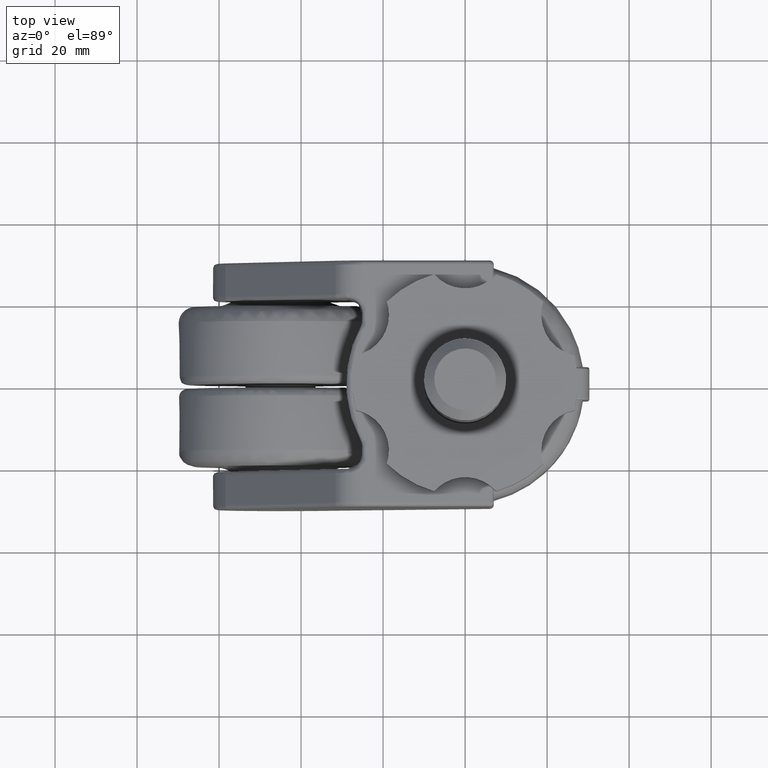
[diagram: clean part render]
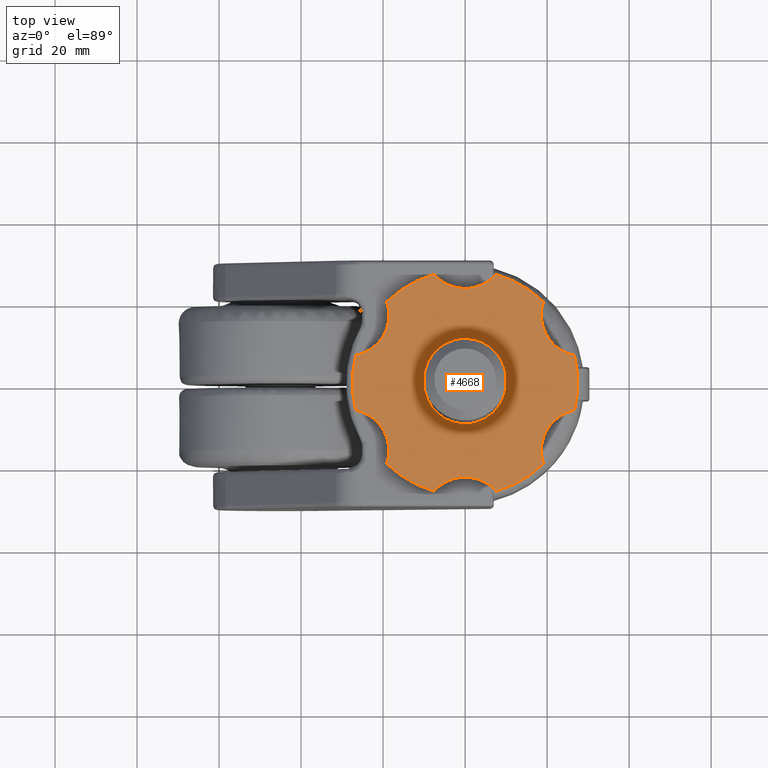
[diagram: same view with one face highlighted and labeled with its STEP entity id]
A machine part, top view. The second image highlights one B-rep face of the part: STEP entity #4668.
In plain terms, the highlighted face is a freeform B-spline surface patch.
Its self-contained STEP definition (entity closure, byte-faithful):
#2966=CARTESIAN_POINT('',(0.784583558921376,-9.969173919589082,3.000000000000001));
#2967=VERTEX_POINT('',#2966);
#2973=CARTESIAN_POINT('',(10.0,0.0,3.0));
#2974=VERTEX_POINT('',#2973);
#2975=CARTESIAN_POINT('',(10.0,0.0,3.0));
#2976=CARTESIAN_POINT('',(10.0,-9.243911797915263,3.000000000000000));
#2977=CARTESIAN_POINT('',(0.784583558921376,-9.969173919589082,3.000000000000000));
#2985=(BOUNDED_CURVE()B_SPLINE_CURVE(2,(#2975,#2976,#2977),.UNSPECIFIED.,.F.,.U.)B_SPLINE_CURVE_WITH_KNOTS((3,3),(0.0,0.236331427850907),.UNSPECIFIED.)CURVE()GEOMETRIC_REPRESENTATION_ITEM()RATIONAL_B_SPLINE_CURVE((1.0,0.723120509559875,0.969723621666520))REPRESENTATION_ITEM(''));
#2986=EDGE_CURVE('',#2974,#2967,#2985,.T.);
#2988=CARTESIAN_POINT('',(-0.784583558921376,9.969173919589082,3.000000000000001));
#2989=VERTEX_POINT('',#2988);
#2990=CARTESIAN_POINT('',(-0.784583558921376,9.969173919589082,3.000000000000000));
#2991=CARTESIAN_POINT('',(-0.392897353731712,10.000000000000002,3.000000000000000));
#2992=CARTESIAN_POINT('',(0.0,10.0,3.0));
#2993=CARTESIAN_POINT('',(10.000000000000002,10.000000000000002,3.0));
#2994=CARTESIAN_POINT('',(10.0,0.0,3.0));
#3002=(BOUNDED_CURVE()B_SPLINE_CURVE(2,(#2990,#2991,#2992,#2993,#2994),.UNSPECIFIED.,.F.,.U.)B_SPLINE_CURVE_WITH_KNOTS((3,2,3),(0.736331427850907,0.750000000000000,1.0),.UNSPECIFIED.)CURVE()GEOMETRIC_REPRESENTATION_ITEM()RATIONAL_B_SPLINE_CURVE((0.969723621666520,0.983986271626673,1.0,0.707106781186548,1.0))REPRESENTATION_ITEM(''));
#3003=EDGE_CURVE('',#2989,#2974,#3002,.T.);
#3109=CARTESIAN_POINT('',(-10.0,0.0,3.0));
#3110=VERTEX_POINT('',#3109);
#3111=CARTESIAN_POINT('',(-10.0,0.0,3.0));
#3112=CARTESIAN_POINT('',(-10.0,9.243911797915262,3.000000000000000));
#3113=CARTESIAN_POINT('',(-0.784583558921376,9.969173919589082,3.000000000000000));
#3121=(BOUNDED_CURVE()B_SPLINE_CURVE(2,(#3111,#3112,#3113),.UNSPECIFIED.,.F.,.U.)B_SPLINE_CURVE_WITH_KNOTS((3,3),(0.500000000000000,0.736331427850907),.UNSPECIFIED.)CURVE()GEOMETRIC_REPRESENTATION_ITEM()RATIONAL_B_SPLINE_CURVE((1.0,0.723120509559875,0.969723621666520))REPRESENTATION_ITEM(''));
#3122=EDGE_CURVE('',#3110,#2989,#3121,.T.);
#3124=CARTESIAN_POINT('',(0.784583558921376,-9.969173919589082,3.000000000000000));
#3125=CARTESIAN_POINT('',(0.392897353731711,-10.0,3.000000000000000));
#3126=CARTESIAN_POINT('',(0.0,-10.0,3.0));
#3127=CARTESIAN_POINT('',(-10.000000000000002,-10.000000000000002,3.0));
#3128=CARTESIAN_POINT('',(-10.0,0.0,3.0));
#3136=(BOUNDED_CURVE()B_SPLINE_CURVE(2,(#3124,#3125,#3126,#3127,#3128),.UNSPECIFIED.,.F.,.U.)B_SPLINE_CURVE_WITH_KNOTS((3,2,3),(0.236331427850907,0.250000000000000,0.500000000000000),.UNSPECIFIED.)CURVE()GEOMETRIC_REPRESENTATION_ITEM()RATIONAL_B_SPLINE_CURVE((0.969723621666520,0.983986271626673,1.0,0.707106781186548,1.0))REPRESENTATION_ITEM(''));
#3137=EDGE_CURVE('',#2967,#3110,#3136,.T.);
#3997=CARTESIAN_POINT('',(-7.550373221018530,26.443181852199501,3.0));
#3998=VERTEX_POINT('',#3997);
#3999=CARTESIAN_POINT('',(7.550373342866660,26.443181774955299,3.0));
#4000=VERTEX_POINT('',#3999);
#4001=CARTESIAN_POINT('',(-7.550373221018546,26.443181852199491,3.0));
#4002=CARTESIAN_POINT('',(-4.560280330764888,22.999999995081428,3.000000000000000));
#4003=CARTESIAN_POINT('',(0.000000010785669,23.0,3.0));
#4004=CARTESIAN_POINT('',(4.560280352336225,23.000000004918569,3.000000000000000));
#4005=CARTESIAN_POINT('',(7.550373342866660,26.443181774955299,3.0));
#4013=(BOUNDED_CURVE()B_SPLINE_CURVE(2,(#4001,#4002,#4003,#4004,#4005),.UNSPECIFIED.,.F.,.U.)B_SPLINE_CURVE_WITH_KNOTS((3,2,3),(0.0,0.500000000000000,1.0),.UNSPECIFIED.)CURVE()GEOMETRIC_REPRESENTATION_ITEM()RATIONAL_B_SPLINE_CURVE((1.0,0.909857630062443,1.0,0.909857630062443,1.0))REPRESENTATION_ITEM(''));
#4014=EDGE_CURVE('',#3998,#4000,#4013,.T.);
#4062=CARTESIAN_POINT('',(19.125281305500501,19.760405943555099,3.0));
#4063=VERTEX_POINT('',#4062);
#4064=CARTESIAN_POINT('',(19.125281305500501,19.760405943555099,3.0));
#4065=CARTESIAN_POINT('',(14.174910601597336,24.551664711962548,2.999999999999999));
#4066=CARTESIAN_POINT('',(7.550373342866661,26.443181774955310,3.0));
#4074=(BOUNDED_CURVE()B_SPLINE_CURVE(2,(#4064,#4065,#4066),.UNSPECIFIED.,.F.,.U.)CURVE()GEOMETRIC_REPRESENTATION_ITEM()QUASI_UNIFORM_CURVE()RATIONAL_B_SPLINE_CURVE((1.0,0.970023773442834,1.0))REPRESENTATION_ITEM(''));
#4075=EDGE_CURVE('',#4063,#4000,#4074,.T.);
#4115=CARTESIAN_POINT('',(26.675653845434201,6.682775764498830,3.0));
#4116=VERTEX_POINT('',#4115);
#4117=CARTESIAN_POINT('',(19.125281305500511,19.760405943555099,3.0));
#4118=CARTESIAN_POINT('',(17.638444857771159,15.449318801575561,3.000000000000000));
#4119=CARTESIAN_POINT('',(19.918584801855008,11.500000277648811,3.0));
#4120=CARTESIAN_POINT('',(22.198724745938854,7.550681753722050,3.000000000000000));
#4121=CARTESIAN_POINT('',(26.675653845434201,6.682775764498830,3.0));
#4129=(BOUNDED_CURVE()B_SPLINE_CURVE(2,(#4117,#4118,#4119,#4120,#4121),.UNSPECIFIED.,.F.,.U.)B_SPLINE_CURVE_WITH_KNOTS((3,2,3),(0.0,0.500000000000000,1.0),.UNSPECIFIED.)CURVE()GEOMETRIC_REPRESENTATION_ITEM()RATIONAL_B_SPLINE_CURVE((1.0,0.909857636937415,1.0,0.909857636937415,1.0))REPRESENTATION_ITEM(''));
#4130=EDGE_CURVE('',#4063,#4116,#4129,.T.);
#4172=CARTESIAN_POINT('',(26.675654526519100,-6.682775908643980,3.0));
#4173=VERTEX_POINT('',#4172);
#4174=CARTESIAN_POINT('',(26.675654526519100,-6.682775908643980,3.0));
#4175=CARTESIAN_POINT('',(28.349820562728599,0.000000013239992,3.0));
#4176=CARTESIAN_POINT('',(26.675653845434169,6.682775764498821,3.0));
#4184=(BOUNDED_CURVE()B_SPLINE_CURVE(2,(#4174,#4175,#4176),.UNSPECIFIED.,.F.,.U.)CURVE()GEOMETRIC_REPRESENTATION_ITEM()QUASI_UNIFORM_CURVE()RATIONAL_B_SPLINE_CURVE((1.0,0.970023776311098,1.0))REPRESENTATION_ITEM(''));
#4185=EDGE_CURVE('',#4173,#4116,#4184,.T.);
#4225=CARTESIAN_POINT('',(19.125280502568501,-19.760406010456151,3.0));
#4226=VERTEX_POINT('',#4225);
#4227=CARTESIAN_POINT('',(26.675654526519100,-6.682775908643971,3.0));
#4228=CARTESIAN_POINT('',(22.198725188536024,-7.550681370068924,3.000000000000000));
#4229=CARTESIAN_POINT('',(19.918585011791489,-11.499999914028150,3.0));
#4230=CARTESIAN_POINT('',(17.638444835046954,-15.449318457987374,3.000000000000000));
#4231=CARTESIAN_POINT('',(19.125280502568501,-19.760406010456151,3.0));
#4239=(BOUNDED_CURVE()B_SPLINE_CURVE(2,(#4227,#4228,#4229,#4230,#4231),.UNSPECIFIED.,.F.,.U.)B_SPLINE_CURVE_WITH_KNOTS((3,2,3),(0.0,0.500000000000000,1.0),.UNSPECIFIED.)CURVE()GEOMETRIC_REPRESENTATION_ITEM()RATIONAL_B_SPLINE_CURVE((1.0,0.909857632345700,1.0,0.909857632345700,1.0))REPRESENTATION_ITEM(''));
#4240=EDGE_CURVE('',#4173,#4226,#4239,.T.);
#4282=CARTESIAN_POINT('',(7.550373221018040,-26.443181852198901,3.0));
#4283=VERTEX_POINT('',#4282);
#4284=CARTESIAN_POINT('',(7.550373221018040,-26.443181852198901,3.0));
#4285=CARTESIAN_POINT('',(14.174910230188166,-24.551664854062551,3.000000000000000));
#4286=CARTESIAN_POINT('',(19.125280502568518,-19.760406010456169,3.0));
#4294=(BOUNDED_CURVE()B_SPLINE_CURVE(2,(#4284,#4285,#4286),.UNSPECIFIED.,.F.,.U.)CURVE()GEOMETRIC_REPRESENTATION_ITEM()QUASI_UNIFORM_CURVE()RATIONAL_B_SPLINE_CURVE((1.0,0.970023775586219,1.0))REPRESENTATION_ITEM(''));
#4295=EDGE_CURVE('',#4283,#4226,#4294,.T.);
#4335=CARTESIAN_POINT('',(-7.550373342866680,-26.443181774955299,3.0));
#4336=VERTEX_POINT('',#4335);
#4337=CARTESIAN_POINT('',(7.550373221018035,-26.443181852198901,3.0));
#4338=CARTESIAN_POINT('',(4.560280330764261,-22.999999995081257,3.000000000000000));
#4339=CARTESIAN_POINT('',(-0.000000010786065,-23.0,3.0));
#4340=CARTESIAN_POINT('',(-4.560280352336393,-23.000000004918753,3.000000000000000));
#4341=CARTESIAN_POINT('',(-7.550373342866680,-26.443181774955299,3.0));
#4349=(BOUNDED_CURVE()B_SPLINE_CURVE(2,(#4337,#4338,#4339,#4340,#4341),.UNSPECIFIED.,.F.,.U.)B_SPLINE_CURVE_WITH_KNOTS((3,2,3),(0.0,0.500000000000000,1.0),.UNSPECIFIED.)CURVE()GEOMETRIC_REPRESENTATION_ITEM()RATIONAL_B_SPLINE_CURVE((1.0,0.909857630062451,1.0,0.909857630062451,1.0))REPRESENTATION_ITEM(''));
#4350=EDGE_CURVE('',#4283,#4336,#4349,.T.);
#4392=CARTESIAN_POINT('',(-19.125280305500400,-19.760405943555099,3.0));
#4393=VERTEX_POINT('',#4392);
#4394=CARTESIAN_POINT('',(-19.125280305500400,-19.760405943555099,3.0));
#4395=CARTESIAN_POINT('',(-14.174910234442333,-24.551664816797022,3.000000000000001));
#4396=CARTESIAN_POINT('',(-7.550373342866681,-26.443181774955299,3.0));
#4404=(BOUNDED_CURVE()B_SPLINE_CURVE(2,(#4394,#4395,#4396),.UNSPECIFIED.,.F.,.U.)CURVE()GEOMETRIC_REPRESENTATION_ITEM()QUASI_UNIFORM_CURVE()RATIONAL_B_SPLINE_CURVE((1.0,0.970023776617695,1.0))REPRESENTATION_ITEM(''));
#4405=EDGE_CURVE('',#4393,#4336,#4404,.T.);
#4445=CARTESIAN_POINT('',(-26.675653845434201,-6.682775764498800,3.0));
#4446=VERTEX_POINT('',#4445);
#4447=CARTESIAN_POINT('',(-19.125280305500411,-19.760405943555099,3.0));
#4448=CARTESIAN_POINT('',(-17.638443761109560,-15.449318521305226,3.000000000000001));
#4449=CARTESIAN_POINT('',(-19.918584047285531,-11.499999852550500,3.0));
#4450=CARTESIAN_POINT('',(-22.198724333461492,-7.550681183795772,3.000000000000001));
#4451=CARTESIAN_POINT('',(-26.675653845434201,-6.682775764498800,3.0));
#4459=(BOUNDED_CURVE()B_SPLINE_CURVE(2,(#4447,#4448,#4449,#4450,#4451),.UNSPECIFIED.,.F.,.U.)B_SPLINE_CURVE_WITH_KNOTS((3,2,3),(0.0,0.500000000000000,1.0),.UNSPECIFIED.)CURVE()GEOMETRIC_REPRESENTATION_ITEM()RATIONAL_B_SPLINE_CURVE((1.0,0.909857626753994,1.0,0.909857626753994,1.0))REPRESENTATION_ITEM(''));
#4460=EDGE_CURVE('',#4393,#4446,#4459,.T.);
#4502=CARTESIAN_POINT('',(-26.675653526519000,6.682775908643970,3.0));
#4503=VERTEX_POINT('',#4502);
#4504=CARTESIAN_POINT('',(-26.675653526519000,6.682775908643970,3.0));
#4505=CARTESIAN_POINT('',(-28.349820594108646,0.000000112019855,3.000000000000000));
#4506=CARTESIAN_POINT('',(-26.675653845434180,-6.682775764498789,3.0));
#4514=(BOUNDED_CURVE()B_SPLINE_CURVE(2,(#4504,#4505,#4506),.UNSPECIFIED.,.F.,.U.)CURVE()GEOMETRIC_REPRESENTATION_ITEM()QUASI_UNIFORM_CURVE()RATIONAL_B_SPLINE_CURVE((1.0,0.970023775237391,1.0))REPRESENTATION_ITEM(''));
#4515=EDGE_CURVE('',#4503,#4446,#4514,.T.);
#4555=CARTESIAN_POINT('',(-19.125280305500400,19.760405943555099,3.0));
#4556=VERTEX_POINT('',#4555);
#4557=CARTESIAN_POINT('',(-26.675653526519000,6.682775908643971,3.0));
#4558=CARTESIAN_POINT('',(-22.198724129673703,7.550681381480059,3.000000000000000));
#4559=CARTESIAN_POINT('',(-19.918583962155608,11.499999999999840,3.0));
#4560=CARTESIAN_POINT('',(-17.638443794637514,15.449318618519625,3.000000000000000));
#4561=CARTESIAN_POINT('',(-19.125280305500411,19.760405943555099,3.0));
#4569=(BOUNDED_CURVE()B_SPLINE_CURVE(2,(#4557,#4558,#4559,#4560,#4561),.UNSPECIFIED.,.F.,.U.)B_SPLINE_CURVE_WITH_KNOTS((3,2,3),(0.0,0.500000000000000,1.0),.UNSPECIFIED.)CURVE()GEOMETRIC_REPRESENTATION_ITEM()RATIONAL_B_SPLINE_CURVE((1.0,0.909857630286209,1.0,0.909857630286209,1.0))REPRESENTATION_ITEM(''));
#4570=EDGE_CURVE('',#4503,#4556,#4569,.T.);
#4612=CARTESIAN_POINT('',(-7.550373221018530,26.443181852199501,3.0));
#4613=CARTESIAN_POINT('',(-14.174910181607320,24.551664867933859,3.000000000000000));
#4614=CARTESIAN_POINT('',(-19.125280305500400,19.760405943555099,3.0));
#4622=(BOUNDED_CURVE()B_SPLINE_CURVE(2,(#4612,#4613,#4614),.UNSPECIFIED.,.F.,.U.)CURVE()GEOMETRIC_REPRESENTATION_ITEM()QUASI_UNIFORM_CURVE()RATIONAL_B_SPLINE_CURVE((1.0,0.970023776006310,1.0))REPRESENTATION_ITEM(''));
#4623=EDGE_CURVE('',#3998,#4556,#4622,.T.);
#4643=CARTESIAN_POINT('',(-30.247249831043032,-29.084856113188909,3.0));
#4644=CARTESIAN_POINT('',(30.247251545073951,-29.084856113188909,3.0));
#4645=CARTESIAN_POINT('',(-30.247249831043032,29.084857058871400,3.0));
#4646=CARTESIAN_POINT('',(30.247251545073951,29.084857058871400,3.0));
#4647=B_SPLINE_SURFACE_WITH_KNOTS('',1,1,((#4643,#4645),(#4644,#4646)),.UNSPECIFIED.,.F.,.F.,.U.,(2,2),(2,2),(0.0,60.494501376116972),(0.0,58.169713172060312),.UNSPECIFIED.);
#4648=ORIENTED_EDGE('',*,*,#4623,.T.);
#4649=ORIENTED_EDGE('',*,*,#4570,.F.);
#4650=ORIENTED_EDGE('',*,*,#4515,.T.);
#4651=ORIENTED_EDGE('',*,*,#4460,.F.);
#4652=ORIENTED_EDGE('',*,*,#4405,.T.);
#4653=ORIENTED_EDGE('',*,*,#4350,.F.);
#4654=ORIENTED_EDGE('',*,*,#4295,.T.);
#4655=ORIENTED_EDGE('',*,*,#4240,.F.);
#4656=ORIENTED_EDGE('',*,*,#4185,.T.);
#4657=ORIENTED_EDGE('',*,*,#4130,.F.);
#4658=ORIENTED_EDGE('',*,*,#4075,.T.);
#4659=ORIENTED_EDGE('',*,*,#4014,.F.);
#4660=EDGE_LOOP('',(#4648,#4649,#4650,#4651,#4652,#4653,#4654,#4655,#4656,#4657,#4658,#4659));
#4661=FACE_OUTER_BOUND('',#4660,.T.);
#4662=ORIENTED_EDGE('',*,*,#3122,.T.);
#4663=ORIENTED_EDGE('',*,*,#3003,.T.);
#4664=ORIENTED_EDGE('',*,*,#2986,.T.);
#4665=ORIENTED_EDGE('',*,*,#3137,.T.);
#4666=EDGE_LOOP('',(#4662,#4663,#4664,#4665));
#4667=FACE_BOUND('',#4666,.T.);
#4668=ADVANCED_FACE('',(#4661,#4667),#4647,.T.);